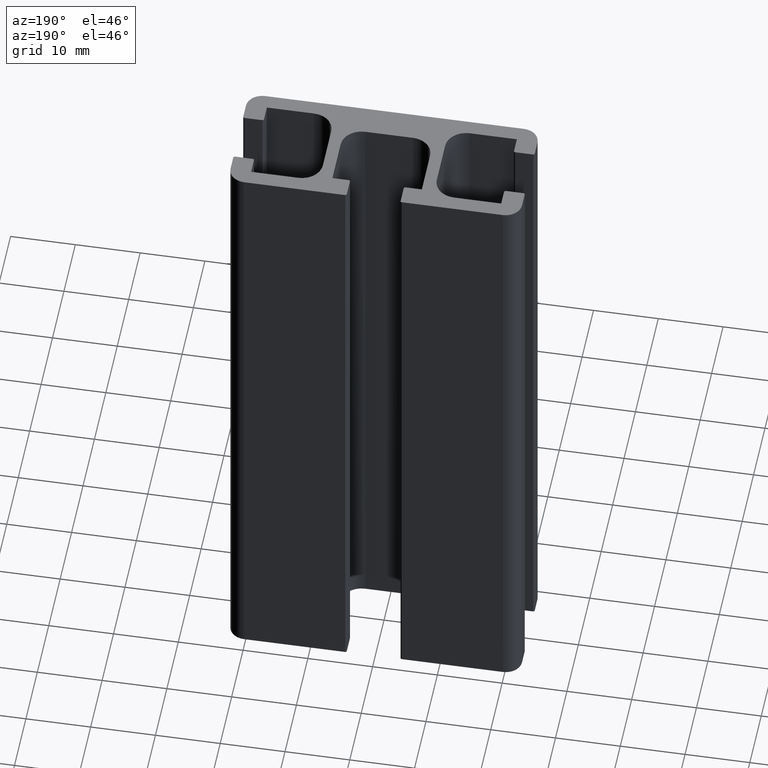
[diagram: clean part render]
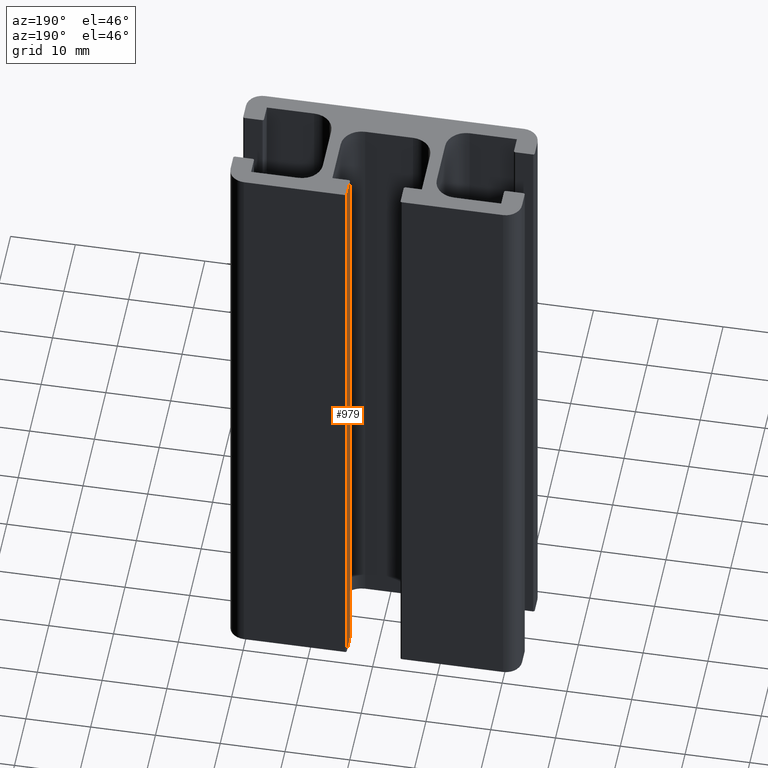
[diagram: same view with one face highlighted and labeled with its STEP entity id]
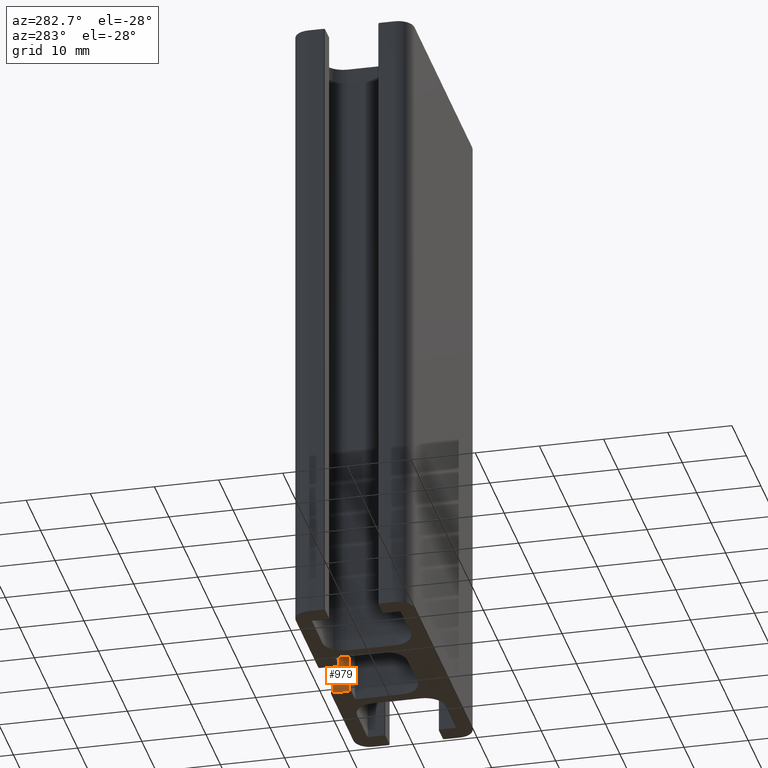
[diagram: same view with one face highlighted and labeled with its STEP entity id]
A machine part, auxiliary view. The second image highlights one B-rep face of the part: STEP entity #979.
A second angle (auxiliary view) of the same face is appended — the face is thin or edge-on in the first view.
In plain terms, the highlighted planar face has unit normal (1, 0, 0).
Its self-contained STEP definition (entity closure, byte-faithful):
#15=PLANE('',#1037);
#47=FACE_OUTER_BOUND('',#99,.T.);
#99=EDGE_LOOP('',(#663,#664,#665,#666));
#152=LINE('',#1445,#258);
#153=LINE('',#1448,#259);
#154=LINE('',#1450,#260);
#155=LINE('',#1451,#261);
#258=VECTOR('',#1144,100.);
#259=VECTOR('',#1147,2.7);
#260=VECTOR('',#1148,2.7);
#261=VECTOR('',#1149,100.);
#410=VERTEX_POINT('',#1439);
#412=VERTEX_POINT('',#1443);
#413=VERTEX_POINT('',#1447);
#414=VERTEX_POINT('',#1449);
#512=EDGE_CURVE('',#412,#410,#152,.T.);
#513=EDGE_CURVE('',#410,#413,#153,.T.);
#514=EDGE_CURVE('',#414,#412,#154,.T.);
#515=EDGE_CURVE('',#414,#413,#155,.T.);
#663=ORIENTED_EDGE('',*,*,#513,.F.);
#664=ORIENTED_EDGE('',*,*,#512,.F.);
#665=ORIENTED_EDGE('',*,*,#514,.F.);
#666=ORIENTED_EDGE('',*,*,#515,.T.);
#979=ADVANCED_FACE('',(#47),#15,.F.);
#1037=AXIS2_PLACEMENT_3D('',#1446,#1145,#1146);
#1144=DIRECTION('',(0.,0.,1.));
#1145=DIRECTION('center_axis',(1.,3.70896728967367E-13,0.));
#1146=DIRECTION('ref_axis',(-3.70903308066772E-13,1.,0.));
#1147=DIRECTION('',(3.70896728967367E-13,-1.,0.));
#1148=DIRECTION('',(-3.70896728967367E-13,1.,0.));
#1149=DIRECTION('',(0.,0.,1.));
#1439=CARTESIAN_POINT('',(4.15,8.99999999999999,100.));
#1443=CARTESIAN_POINT('',(4.15,8.99999999999999,0.));
#1445=CARTESIAN_POINT('',(4.15,8.99999999999999,0.));
#1446=CARTESIAN_POINT('Origin',(4.15000000000101,6.29999999999998,0.));
#1447=CARTESIAN_POINT('',(4.15000000000101,6.29999999999998,100.));
#1448=CARTESIAN_POINT('',(4.15000000000217,3.15000000000076,100.));
#1449=CARTESIAN_POINT('',(4.15000000000101,6.29999999999998,0.));
#1450=CARTESIAN_POINT('',(4.15000000000217,3.15000000000076,0.));
#1451=CARTESIAN_POINT('',(4.15000000000101,6.29999999999998,0.));